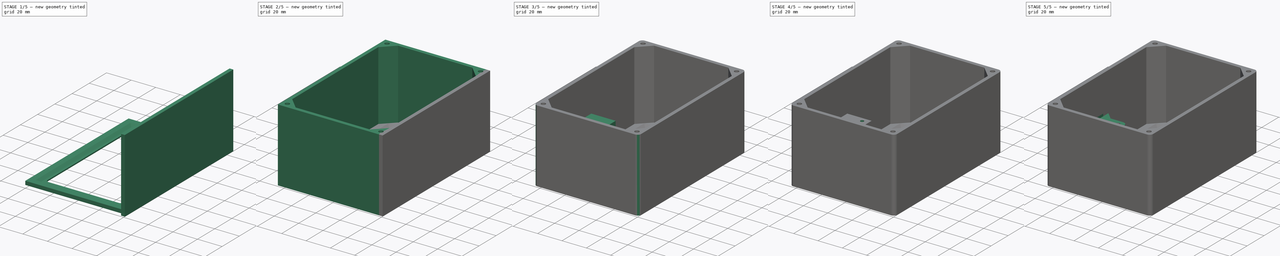
[diagram: build sequence overview — one tinted view per stage of 5, left to right]
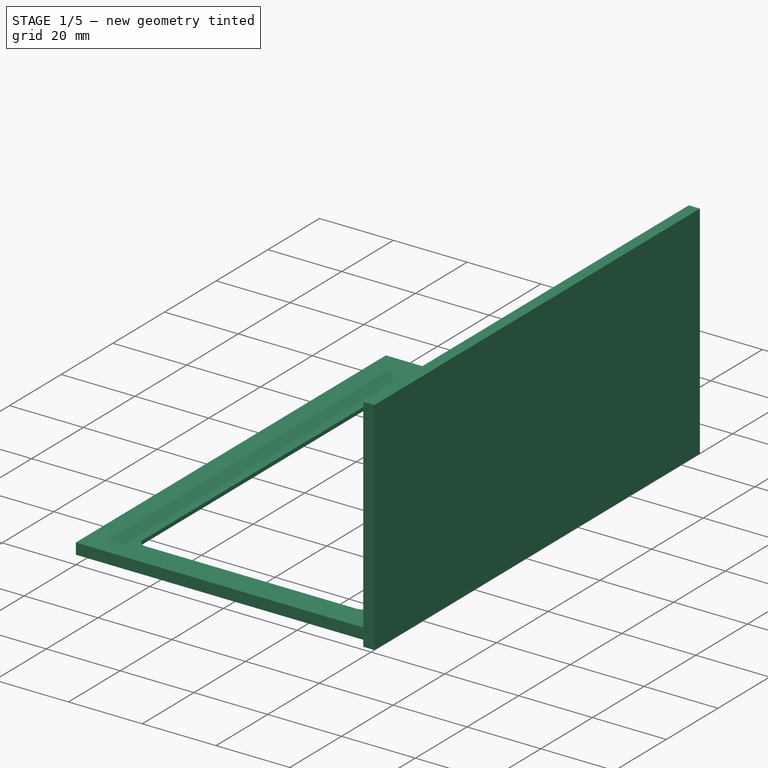
[diagram: stage 1 of 5 — iso view after this stage's code; geometry added in this stage tinted green]
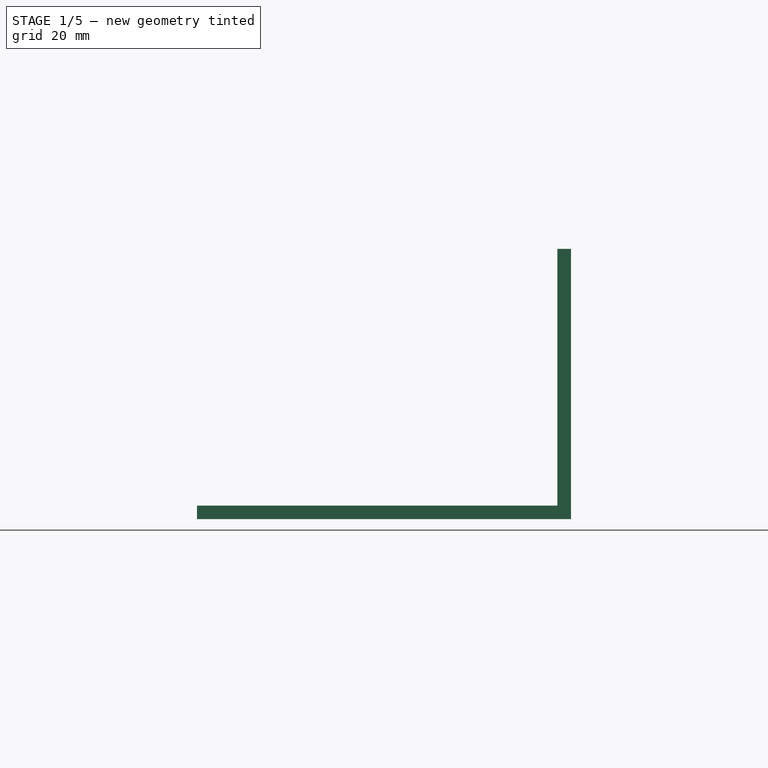
[diagram: stage 1 of 5 — front view after this stage's code; geometry added in this stage tinted green]
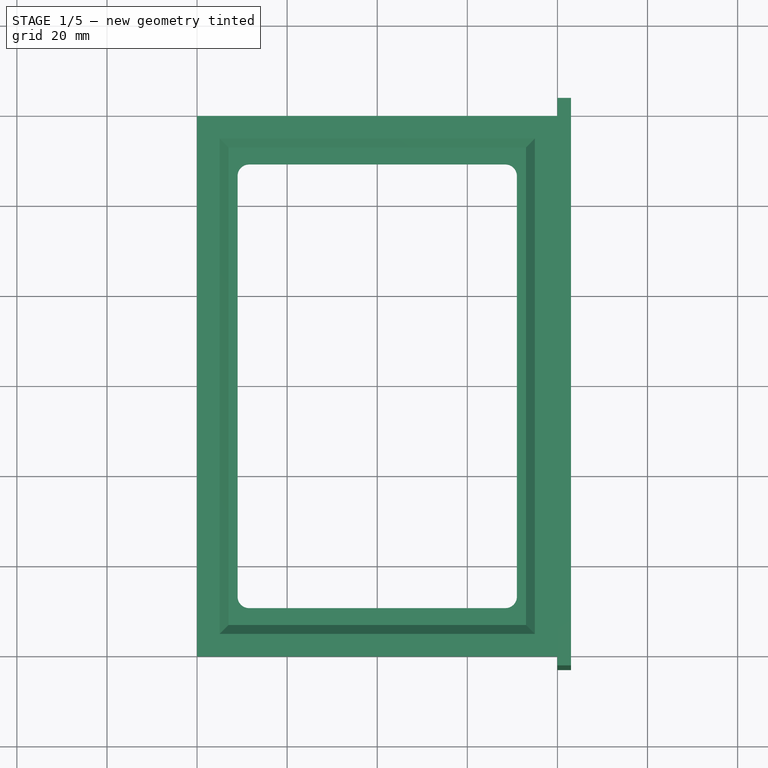
[diagram: stage 1 of 5 — top view after this stage's code; geometry added in this stage tinted green]
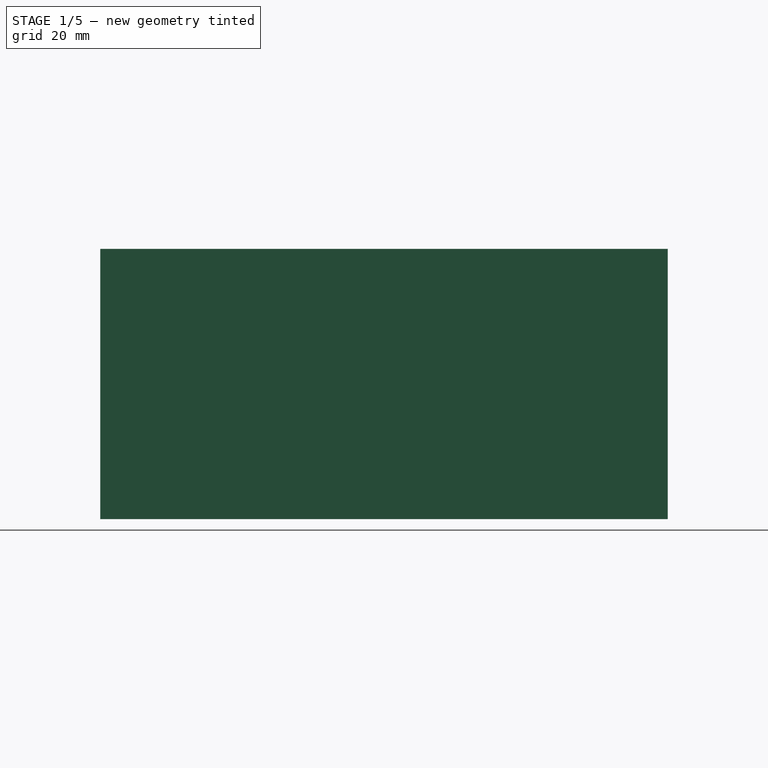
[diagram: stage 1 of 5 — right view after this stage's code; geometry added in this stage tinted green]
FCSTD DOCUMENT  (FreeCAD 0.18.3R)
Label: box_base
License: All rights reserved
LicenseURL: http://en.wikipedia.org/wiki/All_rights_reserved
objects: Sketcher::SketchObject×10, PartDesign::Pocket×9, PartDesign::Chamfer×6, PartDesign::Mirrored×6, PartDesign::Pad×5, PartDesign::Fillet×3, PartDesign::Body×1
note: 54 computed .brp shape members not serialized (recipe doc carries the construction recipe); baked Part::Feature solids carry a one-line shape summary decoded from their .brp

FEATURE [Sketcher::SketchObject] Sketch
  MapMode = 5
  Support = -> [XY_Plane]
  sketch-geometry (4):
    g0: LineSegment StartX=-40 StartY=60 StartZ=0 EndX=40 EndY=60 EndZ=0
    g1: LineSegment StartX=40 StartY=60 StartZ=0 EndX=40 EndY=-60 EndZ=0
    g2: LineSegment StartX=40 StartY=-60 StartZ=0 EndX=-40 EndY=-60 EndZ=0
    g3: LineSegment StartX=-40 StartY=-60 StartZ=0 EndX=-40 EndY=60 EndZ=0
  constraints (10):
    c: Coincident(g0,g1)
    c: Coincident(g1,g2)
    c: Coincident(g2,g3)
    c: Coincident(g3,g0)
    c: Horizontal(g2)
    c: Vertical(g3)
    c: Symmetric(g0,g0,g-2)
    c: Symmetric(g1,g0,g-1)
    c: DistanceY(g1,g1) = 120
    c: DistanceX(g2,g2) = 80
FEATURE [PartDesign::Pad] Pad
  Length = 3
  Length2 = 100
  Profile = -> Sketch
  Type = 0
FEATURE [Sketcher::SketchObject] Sketch001
  ExternalGeometry = -> [Pad]
  MapMode = 5
  Placement = pos=(0,0,3) rot=(0,0,1;0rad)
  Support = -> [Pad]
  sketch-geometry (4):
    g0: LineSegment StartX=-35 StartY=55 StartZ=0 EndX=35 EndY=55 EndZ=0
    g1: LineSegment StartX=35 StartY=55 StartZ=0 EndX=35 EndY=-55 EndZ=0
    g2: LineSegment StartX=35 StartY=-55 StartZ=0 EndX=-35 EndY=-55 EndZ=0
    g3: LineSegment StartX=-35 StartY=-55 StartZ=0 EndX=-35 EndY=55 EndZ=0
  constraints (10):
    c: Coincident(g0,g1)
    c: Coincident(g1,g2)
    c: Coincident(g2,g3)
    c: Coincident(g3,g0)
    c: Horizontal(g2)
    c: Vertical(g3)
    c: Symmetric(g0,g0,g-2)
    c: Symmetric(g1,g0,g-1)
    c: DistanceY(g0,g-4) = 5
    c: DistanceX(g1,g-4) = 5
FEATURE [PartDesign::Pocket] Pocket
  BaseFeature = -> Pad
  Length = 2
  Length2 = 100
  Profile = -> Sketch001
  Type = 0
FEATURE [Sketcher::SketchObject] Sketch002
  MapMode = 5
  Placement = pos=(0,0,1) rot=(0,0,1;0rad)
  Support = -> [Pocket]
  sketch-geometry (4):
    g0: LineSegment StartX=-31 StartY=49.25 StartZ=0 EndX=31 EndY=49.25 EndZ=0
    g1: LineSegment StartX=31 StartY=49.25 StartZ=0 EndX=31 EndY=-49.25 EndZ=0
    g2: LineSegment StartX=31 StartY=-49.25 StartZ=0 EndX=-31 EndY=-49.25 EndZ=0
    g3: LineSegment StartX=-31 StartY=-49.25 StartZ=0 EndX=-31 EndY=49.25 EndZ=0
  constraints (10):
    c: Coincident(g0,g1)
    c: Coincident(g1,g2)
    c: Coincident(g2,g3)
    c: Coincident(g3,g0)
    c: Horizontal(g2)
    c: Vertical(g3)
    c: Symmetric(g0,g1,g-1)
    c: Symmetric(g0,g0,g-2)
    c: DistanceY(g1,g1) = 98.5
    c: DistanceX(g0,g0) = 62
FEATURE [PartDesign::Pocket] Pocket001
  BaseFeature = -> Pocket
  Length = 5
  Length2 = 100
  Profile = -> Sketch002
  Type = 0
FEATURE [PartDesign::Fillet] Fillet
  Base = -> Pocket001 [Edge27,Edge23,Edge22,Edge25]
  BaseFeature = -> Pocket001
  Radius = 2.54
FEATURE [PartDesign::Chamfer] Chamfer
  Base = -> Fillet [Edge37,Edge39,Edge40,Edge38]
  BaseFeature = -> Fillet
  Size = 1.99
FEATURE [Sketcher::SketchObject] Sketch003
  ExternalGeometry = -> [Chamfer]
  MapMode = 5
  Placement = pos=(40,0,0) rot=(0.57735,0.57735,0.57735;2.0944rad)
  Support = -> [Chamfer]
  sketch-geometry (6):
    g0: LineSegment StartX=-63 StartY=60 StartZ=0 EndX=63 EndY=60 EndZ=0
    g1: LineSegment StartX=63 StartY=60 StartZ=0 EndX=63 EndY=0 EndZ=0
    g2: LineSegment StartX=63 StartY=0 StartZ=0 EndX=-63 EndY=0 EndZ=0
    g3: LineSegment StartX=-63 StartY=0 StartZ=0 EndX=-63 EndY=60 EndZ=0
    g4: LineSegment [constr] StartX=60 StartY=0 StartZ=0 EndX=63 EndY=0 EndZ=0
    g5: LineSegment [constr] StartX=-60 StartY=0 StartZ=0 EndX=-63 EndY=0 EndZ=0
  constraints (16):
    c: Coincident(g0,g1)
    c: Coincident(g1,g2)
    c: Coincident(g2,g3)
    c: Coincident(g3,g0)
    c: Horizontal(g0)
    c: Horizontal(g2)
    c: Vertical(g1)
    c: Vertical(g3)
    c: Coincident(g4,g-3)
    c: Horizontal(g4)
    c: DistanceX(g4,g4) = 3
    c: Coincident(g5,g-4)
    c: DistanceX(g5,g5) = 3
    c: Coincident(g5,g2)
    c: Coincident(g4,g1)
    c: DistanceY(g1,g1) = 60
FEATURE [PartDesign::Pad] Pad001
  BaseFeature = -> Chamfer
  Length = 3
  Length2 = 100
  Profile = -> Sketch003
  Type = 0
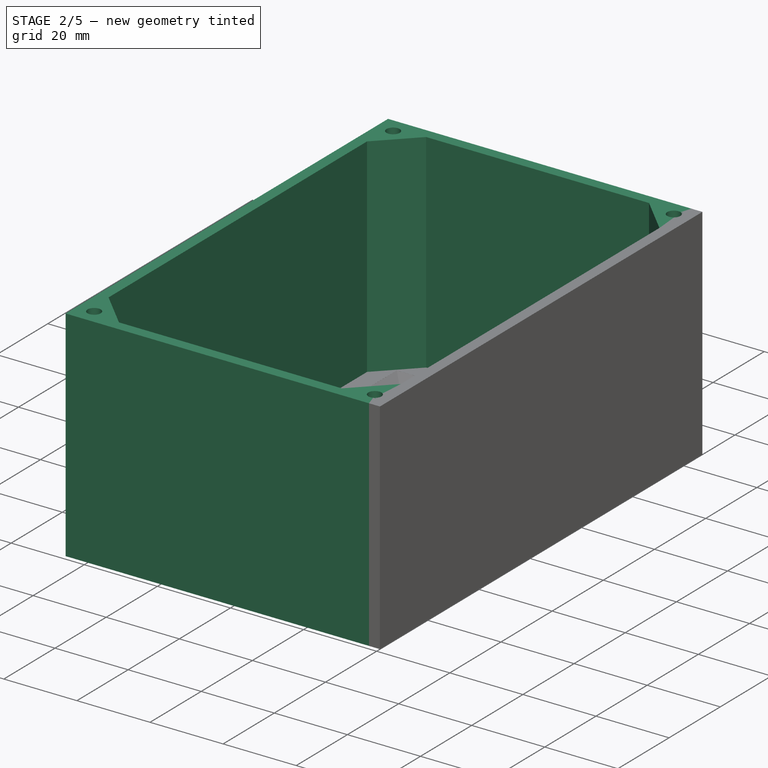
[diagram: stage 2 of 5 — iso view after this stage's code; geometry added in this stage tinted green]
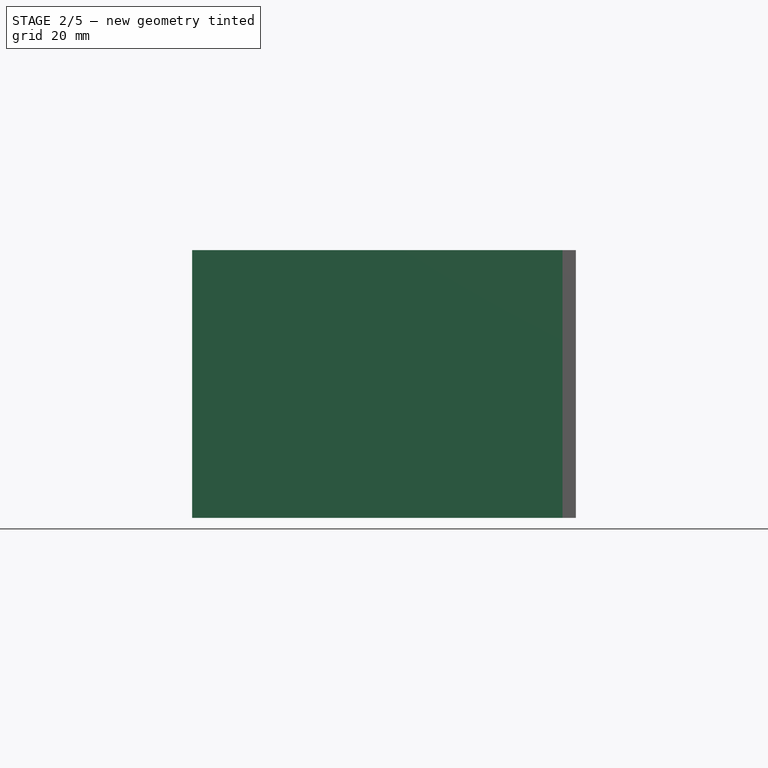
[diagram: stage 2 of 5 — front view after this stage's code; geometry added in this stage tinted green]
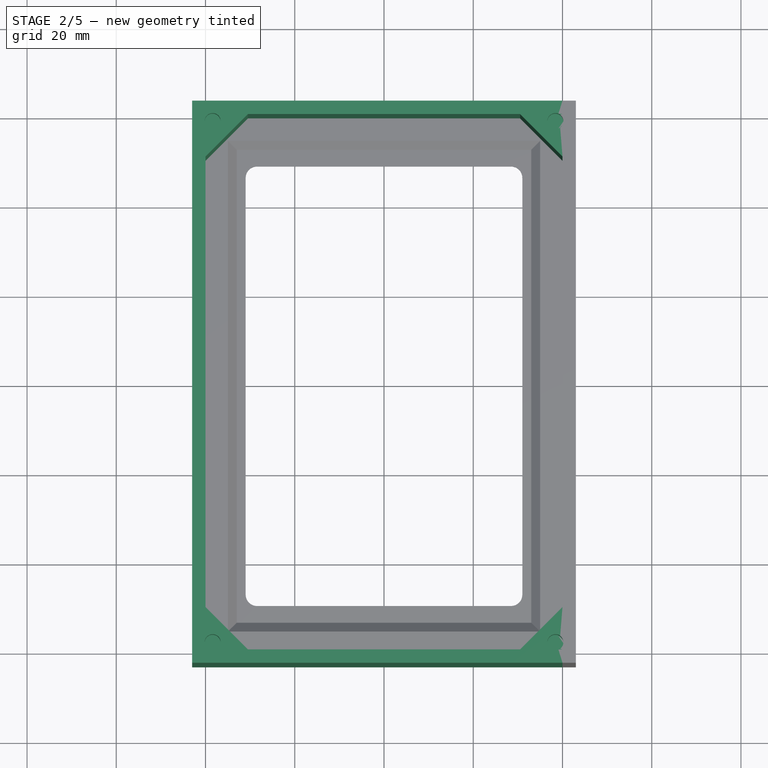
[diagram: stage 2 of 5 — top view after this stage's code; geometry added in this stage tinted green]
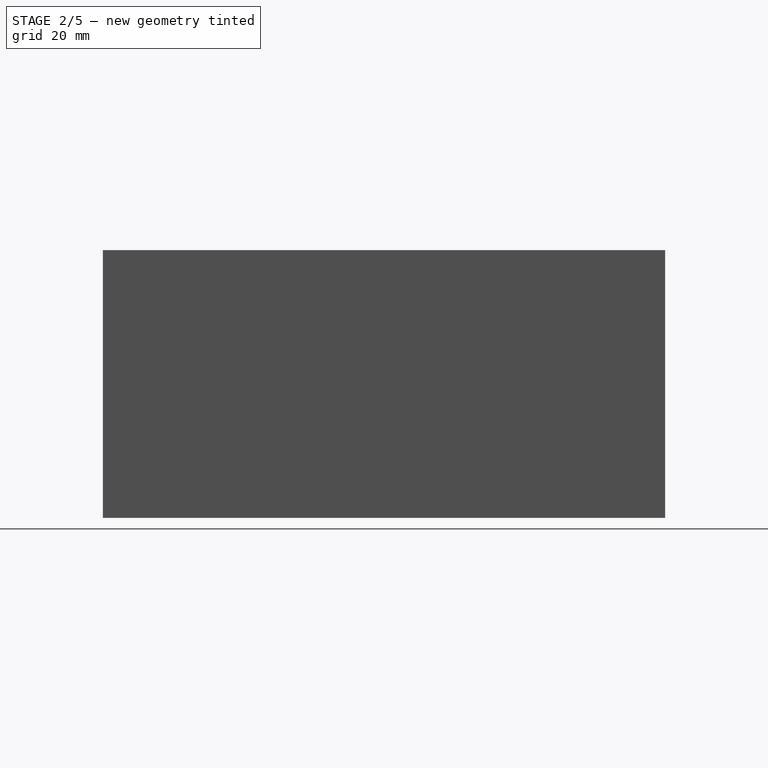
[diagram: stage 2 of 5 — right view after this stage's code; geometry added in this stage tinted green]
FEATURE [PartDesign::Mirrored] Mirrored
  BaseFeature = -> Pad001
  MirrorPlane = -> YZ_Plane
  Originals = -> [Pad001]
FEATURE [Sketcher::SketchObject] Sketch004
  ExternalGeometry = -> [Mirrored]
  MapMode = 5
  Placement = pos=(0,60,0) rot=(0,0.707107,0.707107;3.14159rad)
  Support = -> [Mirrored]
  sketch-geometry (4):
    g0: LineSegment StartX=-40 StartY=60 StartZ=0 EndX=40 EndY=60 EndZ=0
    g1: LineSegment StartX=40 StartY=60 StartZ=0 EndX=40 EndY=0 EndZ=0
    g2: LineSegment StartX=40 StartY=0 StartZ=0 EndX=-40 EndY=0 EndZ=0
    g3: LineSegment StartX=-40 StartY=0 StartZ=0 EndX=-40 EndY=60 EndZ=0
  constraints (9):
    c: Coincident(g0,g1)
    c: Coincident(g1,g2)
    c: Coincident(g2,g3)
    c: Coincident(g3,g0)
    c: Horizontal(g2)
    c: Vertical(g1)
    c: Coincident(g0,g-4)
    c: Coincident(g-3,g0)
    c: Coincident(g2,g-3)
FEATURE [PartDesign::Pad] Pad002
  BaseFeature = -> Mirrored
  Length = 3
  Length2 = 100
  Profile = -> Sketch004
  Type = 0
FEATURE [PartDesign::Mirrored] Mirrored001
  BaseFeature = -> Pad002
  MirrorPlane = -> XZ_Plane
  Originals = -> [Pad002]
FEATURE [PartDesign::Chamfer] Chamfer001
  Base = -> Mirrored001 [Edge18,Edge17,Edge42,Edge34]
  BaseFeature = -> Mirrored001
  Size = 9.5
FEATURE [Sketcher::SketchObject] Sketch005
  ExternalGeometry = -> [Chamfer001]
  MapMode = 5
  Placement = pos=(0,1.32e-14,60) rot=(0,0,1;0rad)
  Support = -> [Chamfer001]
  sketch-geometry (4):
    g0: LineSegment [constr] StartX=-43 StartY=-63 StartZ=0 EndX=-38.4038 EndY=-58.4038 EndZ=0
    g1: Circle CenterX=-38.4038 CenterY=-58.4038 CenterZ=0 NormalX=0 NormalY=0 NormalZ=1 AngleXU=0 Radius=1.8
    g2: LineSegment [constr] StartX=43 StartY=-63 StartZ=0 EndX=38.4038 EndY=-58.4038 EndZ=0
    g3: Circle CenterX=38.4038 CenterY=-58.4038 CenterZ=0 NormalX=0 NormalY=0 NormalZ=1 AngleXU=0 Radius=1.8
  constraints (10):
    c: Coincident(g0,g-3)
    c: Angle(g-3,g0) = 0.785398
    c: Distance(g0) = 6.5
    c: Coincident(g1,g0)
    c: Diameter(g1) = 3.6
    c: Coincident(g2,g-6)
    c: Angle(g2,g-6) = 0.785398
    c: Equal(g2,g0)
    c: Coincident(g3,g2)
    c: Diameter(g3) = 3.6
FEATURE [PartDesign::Pocket] Pocket002
  BaseFeature = -> Chamfer001
  Length = 8
  Length2 = 100
  Profile = -> Sketch005
  Type = 0
FEATURE [PartDesign::Mirrored] Mirrored002
  BaseFeature = -> Pocket002
  MirrorPlane = -> XZ_Plane
  Originals = -> [Pocket002]
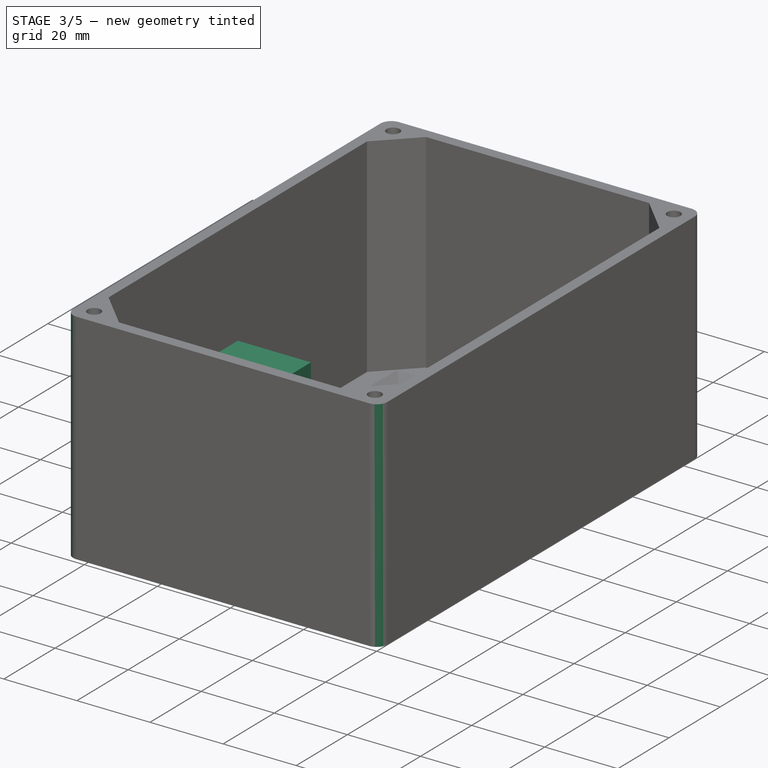
[diagram: stage 3 of 5 — iso view after this stage's code; geometry added in this stage tinted green]
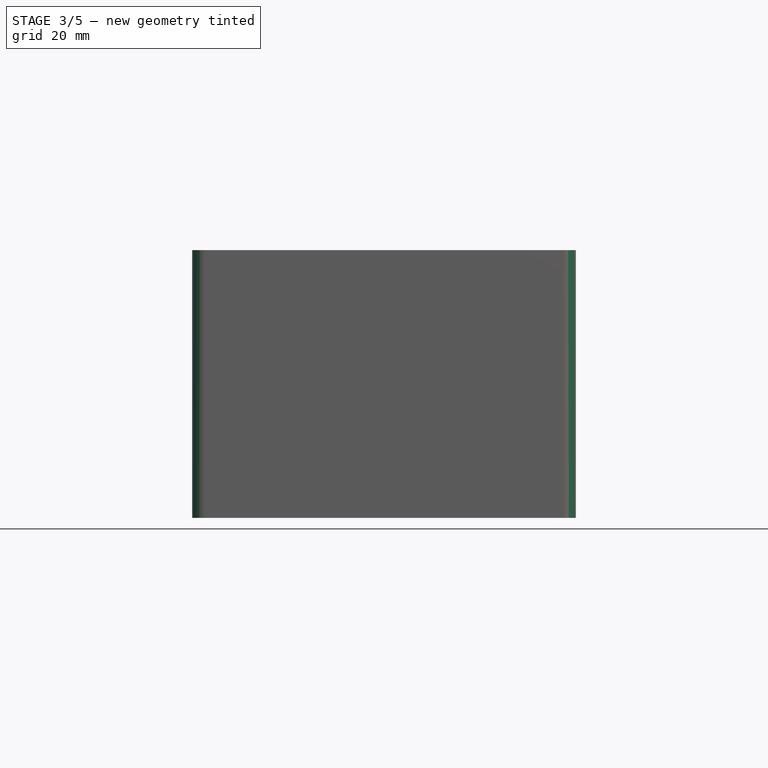
[diagram: stage 3 of 5 — front view after this stage's code; geometry added in this stage tinted green]
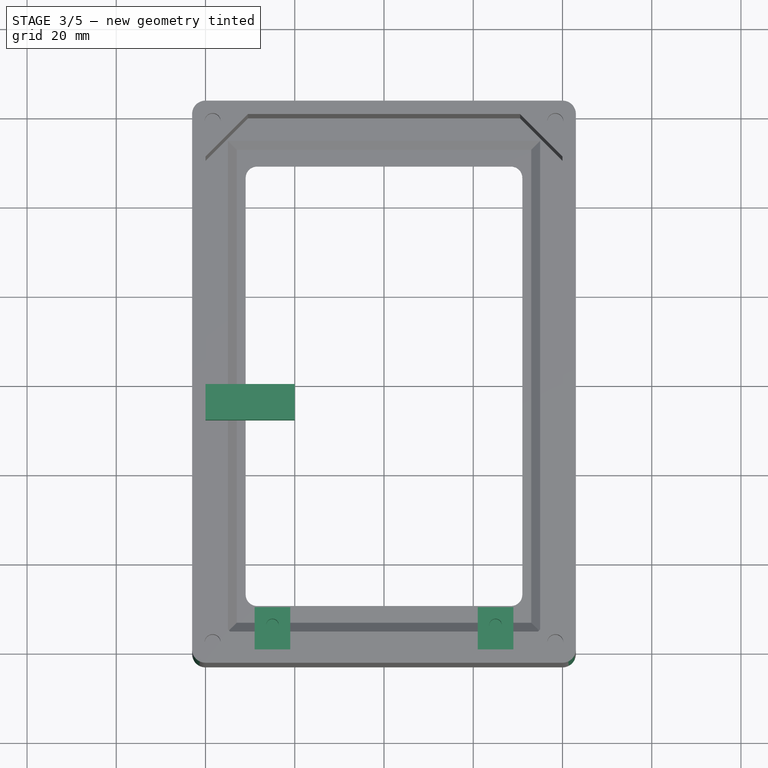
[diagram: stage 3 of 5 — top view after this stage's code; geometry added in this stage tinted green]
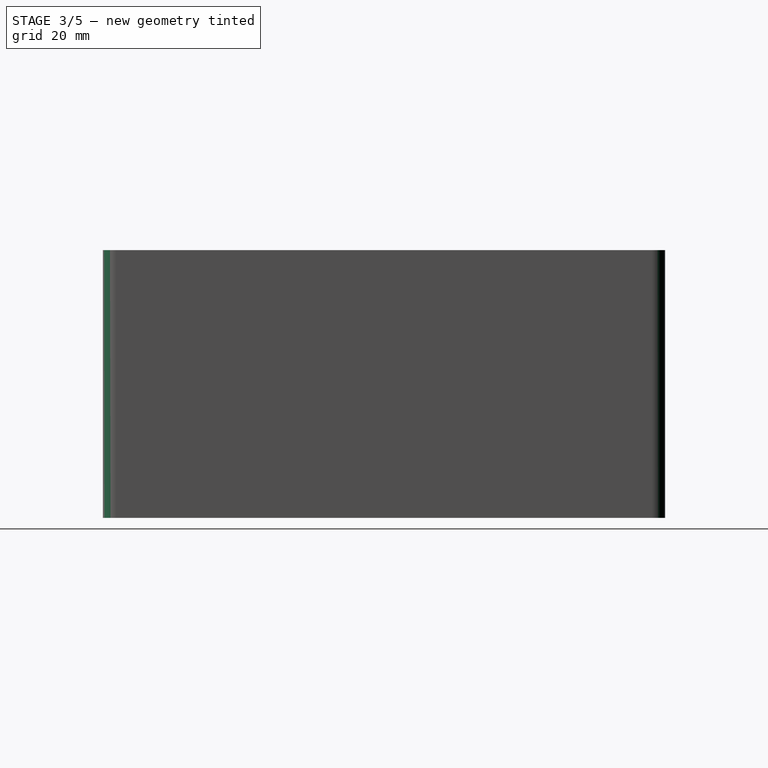
[diagram: stage 3 of 5 — right view after this stage's code; geometry added in this stage tinted green]
FEATURE [PartDesign::Fillet] Fillet001
  Base = -> Mirrored002 [Edge30,Edge32,Edge96,Edge94]
  BaseFeature = -> Mirrored002
  Radius = 2.99
FEATURE [Sketcher::SketchObject] Sketch006
  ExternalGeometry = -> [Fillet001]
  MapMode = 5
  Placement = pos=(0,-60,-1.44e-14) rot=(0,0.707107,0.707107;3.14159rad)
  Support = -> [Fillet001]
  sketch-geometry (8):
    g0: LineSegment StartX=-29 StartY=30 StartZ=0 EndX=-21 EndY=30 EndZ=0
    g1: LineSegment StartX=-21 StartY=30 StartZ=0 EndX=-21 EndY=20 EndZ=0
    g2: LineSegment StartX=-21 StartY=20 StartZ=0 EndX=-29 EndY=20 EndZ=0
    g3: LineSegment StartX=-29 StartY=20 StartZ=0 EndX=-29 EndY=30 EndZ=0
    g4: LineSegment StartX=21 StartY=30 StartZ=0 EndX=29 EndY=30 EndZ=0
    g5: LineSegment StartX=29 StartY=30 StartZ=0 EndX=29 EndY=20 EndZ=0
    g6: LineSegment StartX=29 StartY=20 StartZ=0 EndX=21 EndY=20 EndZ=0
    g7: LineSegment StartX=21 StartY=20 StartZ=0 EndX=21 EndY=30 EndZ=0
  constraints (23):
    c: Coincident(g0,g1)
    c: Coincident(g1,g2)
    c: Coincident(g2,g3)
    c: Coincident(g3,g0)
    c: Horizontal(g0)
    c: Horizontal(g2)
    c: Vertical(g1)
    c: Vertical(g3)
    c: Coincident(g4,g5)
    c: Coincident(g5,g6)
    c: Coincident(g6,g7)
    c: Coincident(g7,g4)
    c: Horizontal(g4)
    c: Horizontal(g6)
    c: Vertical(g5)
    c: Vertical(g7)
    c: Symmetric(g0,g4,g-2)
    c: Equal(g4,g0)
    c: Equal(g1,g7)
    c: DistanceX(g0,g0) = 8
    c: DistanceX(g0,g4) = 42
    c: DistanceY(g1,g1) = 10
    c: Distance(g1,g-3) = 17
FEATURE [PartDesign::Pad] Pad003
  BaseFeature = -> Fillet001
  Length = 10
  Length2 = 100
  Profile = -> Sketch006
  Type = 0
FEATURE [Sketcher::SketchObject] Sketch007
  ExternalGeometry = -> [Pad003]
  MapMode = 5
  Placement = pos=(-40,8.8e-15,-8.8e-15) rot=(0.57735,0.57735,0.57735;2.0944rad)
  Support = -> [Pad003]
  sketch-geometry (4):
    g0: LineSegment StartX=-8 StartY=30 StartZ=0 EndX=-5.3e-15 EndY=30 EndZ=0
    g1: LineSegment StartX=-5.2e-15 StartY=30 StartZ=0 EndX=-5.2e-15 EndY=20 EndZ=0
    g2: LineSegment StartX=-5.2e-15 StartY=20 StartZ=0 EndX=-8 EndY=20 EndZ=0
    g3: LineSegment StartX=-8 StartY=20 StartZ=0 EndX=-8 EndY=30 EndZ=0
  constraints (12):
    c: Coincident(g0,g1)
    c: Coincident(g1,g2)
    c: Coincident(g2,g3)
    c: Coincident(g3,g0)
    c: Horizontal(g0)
    c: Horizontal(g2)
    c: Vertical(g1)
    c: Vertical(g3)
    c: DistanceX(g0,g0) = 8
    c: DistanceY(g1,g1) = 10
    c: Distance(g1,g-3) = 17
    c: Distance(g2,g-4) = 42.5
FEATURE [PartDesign::Pad] Pad004
  BaseFeature = -> Pad003
  Length = 20
  Length2 = 100
  Profile = -> Sketch007
  Type = 0
FEATURE [Sketcher::SketchObject] Sketch008
  ExternalGeometry = -> [Pad004]
  MapMode = 5
  Placement = pos=(0,-6.6e-15,30) rot=(0,0,1;0rad)
  Support = -> [Pad004]
  sketch-geometry (1):
    g0: Circle CenterX=-25 CenterY=-54 CenterZ=0 NormalX=0 NormalY=0 NormalZ=1 AngleXU=0 Radius=1.4
  constraints (3):
    c: Diameter(g0) = 2.8
    c: DistanceX(g0,g-4) = 4
    c: DistanceY(g-4,g0) = 6
FEATURE [PartDesign::Pocket] Pocket003
  BaseFeature = -> Pad004
  Length = 7
  Length2 = 100
  Profile = -> Sketch008
  Type = 0
FEATURE [PartDesign::Mirrored] Mirrored003
  BaseFeature = -> Pocket003
  MirrorPlane = -> Sketch008 [V_Axis]
  Originals = -> [Pocket003]
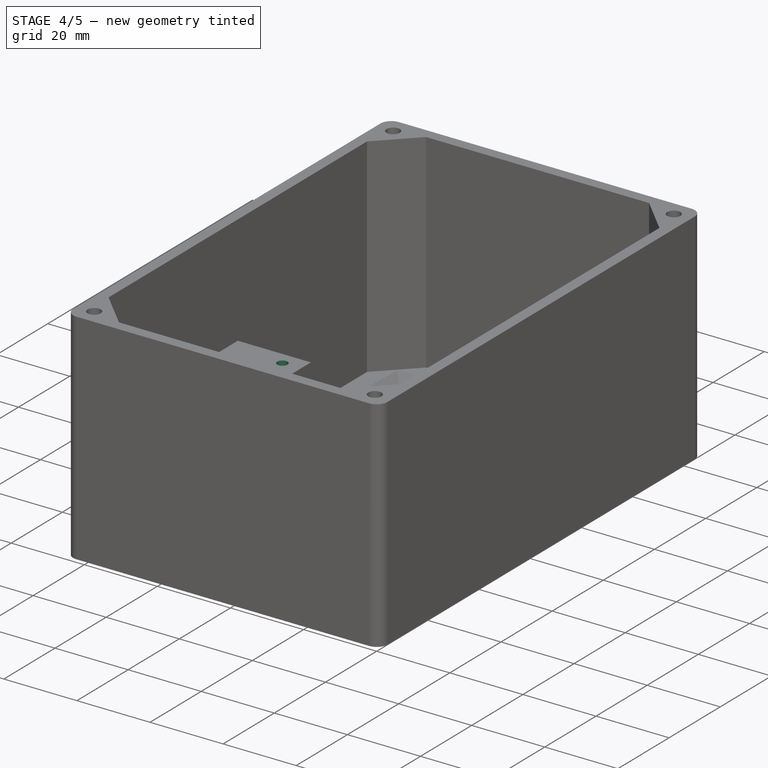
[diagram: stage 4 of 5 — iso view after this stage's code; geometry added in this stage tinted green]
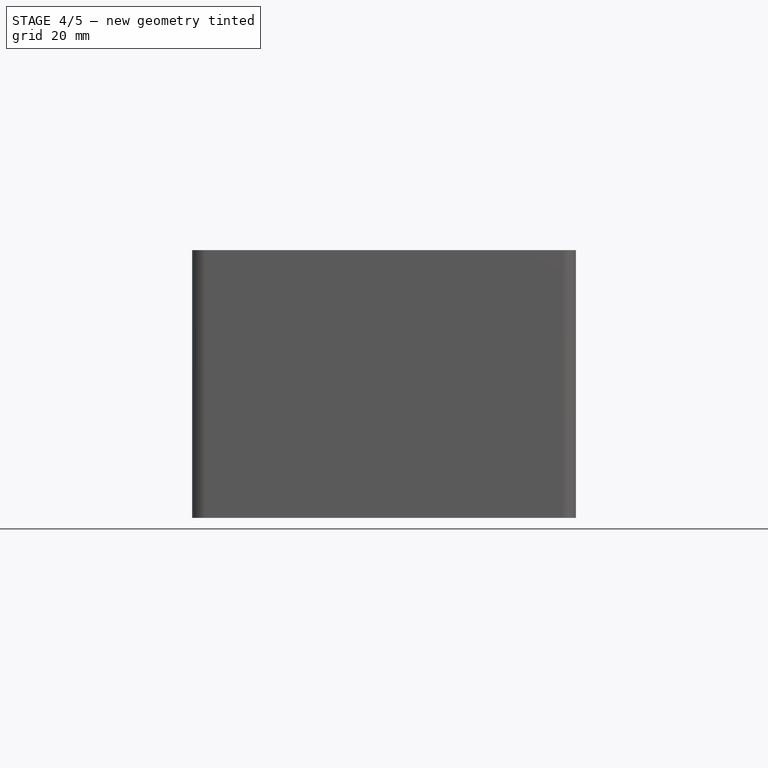
[diagram: stage 4 of 5 — front view after this stage's code; geometry added in this stage tinted green]
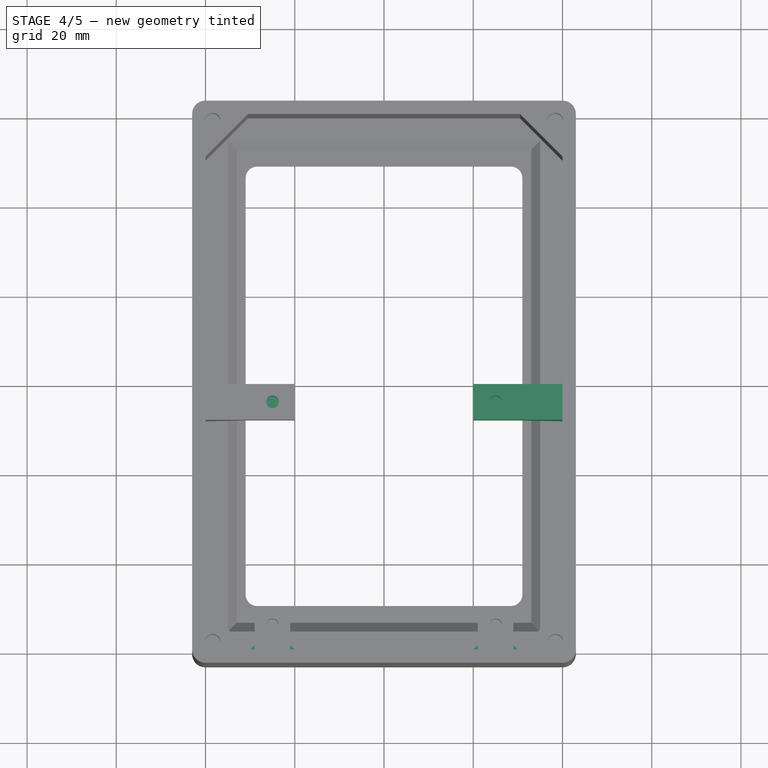
[diagram: stage 4 of 5 — top view after this stage's code; geometry added in this stage tinted green]
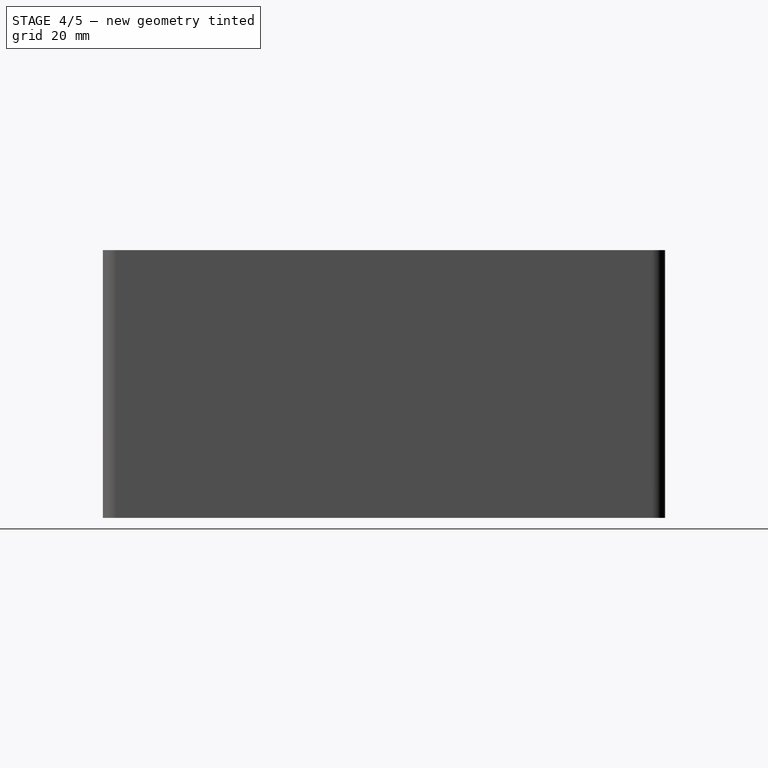
[diagram: stage 4 of 5 — right view after this stage's code; geometry added in this stage tinted green]
FEATURE [Sketcher::SketchObject] Sketch009
  ExternalGeometry = -> [Mirrored003]
  MapMode = 5
  Placement = pos=(-6.6e-15,0,30) rot=(0,0,1;0rad)
  Support = -> [Mirrored003]
  sketch-geometry (1):
    g0: Circle CenterX=-25 CenterY=-4 CenterZ=0 NormalX=0 NormalY=0 NormalZ=1 AngleXU=0 Radius=1.4
  constraints (3):
    c: Diameter(g0) = 2.8
    c: Vertical(g0,g-3)
    c: Distance(g-3,g0) = 50
FEATURE [PartDesign::Pocket] Pocket004
  BaseFeature = -> Mirrored003
  Length = 7
  Length2 = 100
  Profile = -> Sketch009
  Type = 0
FEATURE [PartDesign::Mirrored] Mirrored004
  BaseFeature = -> Pocket004
  MirrorPlane = -> YZ_Plane
  Originals = -> [Pad004]
FEATURE [PartDesign::Mirrored] Mirrored005
  BaseFeature = -> Mirrored004
  MirrorPlane = -> Sketch009 [V_Axis]
  Originals = -> [Pocket004]
FEATURE [PartDesign::Chamfer] Chamfer002
  Base = -> Mirrored005 [Edge91,Edge87]
  BaseFeature = -> Mirrored005
  Size = 9.99
FEATURE [PartDesign::Chamfer] Chamfer003
  Base = -> Chamfer002 [Edge82,Edge77]
  BaseFeature = -> Chamfer002
  Size = 9.99
FEATURE [PartDesign::Chamfer] Chamfer004
  Base = -> Chamfer003 [Edge71,Edge72,Edge74,Edge78,Edge67]
  BaseFeature = -> Chamfer003
  Size = 1.49
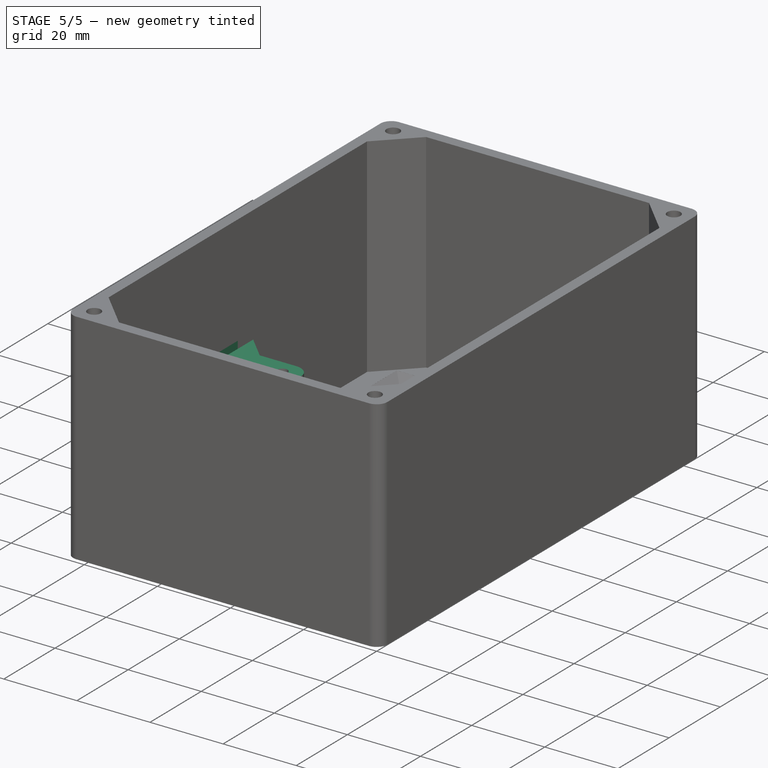
[diagram: stage 5 of 5 — iso view after this stage's code; geometry added in this stage tinted green]
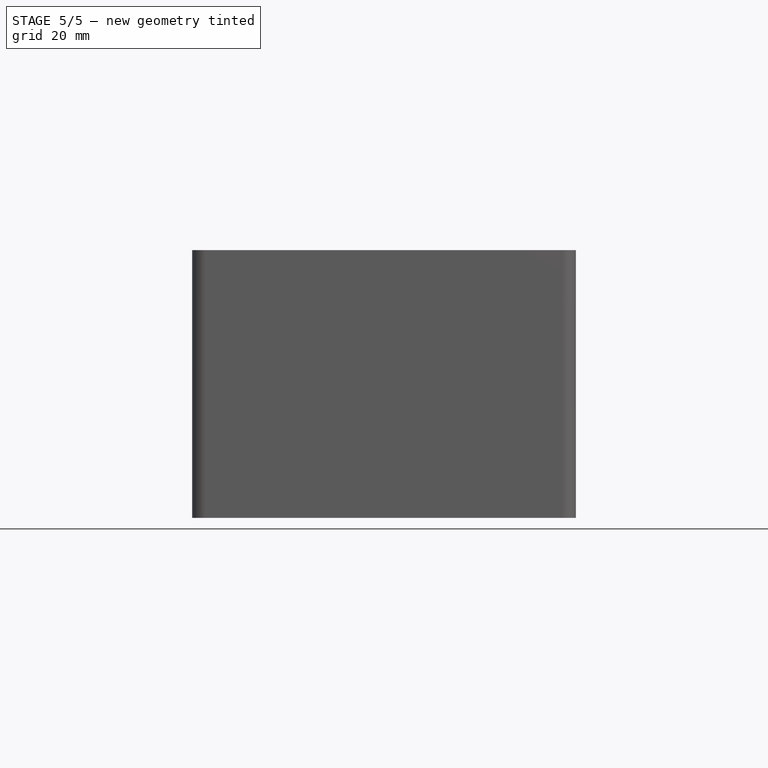
[diagram: stage 5 of 5 — front view after this stage's code; geometry added in this stage tinted green]
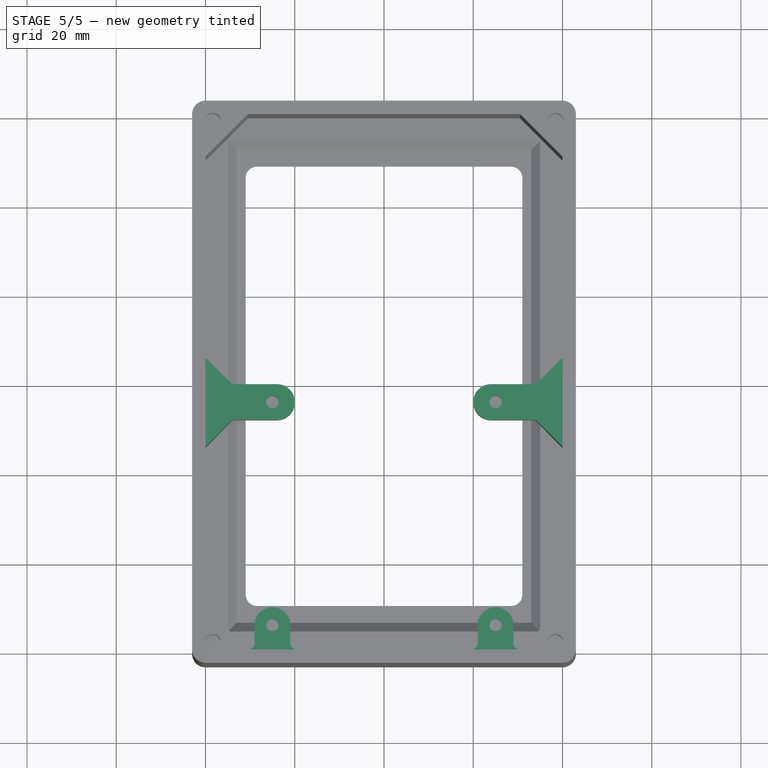
[diagram: stage 5 of 5 — top view after this stage's code; geometry added in this stage tinted green]
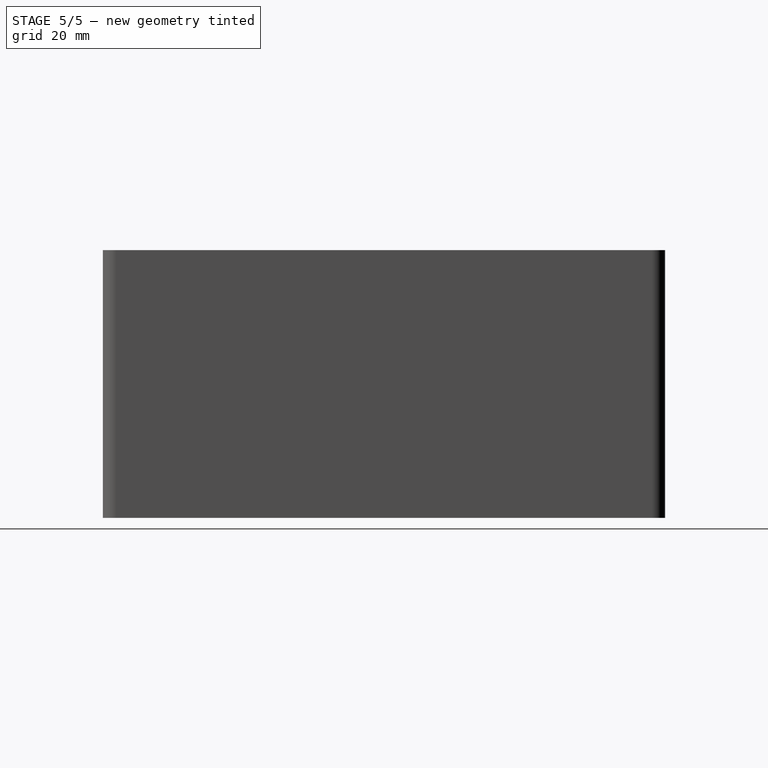
[diagram: stage 5 of 5 — right view after this stage's code; geometry added in this stage tinted green]
FEATURE [PartDesign::Chamfer] Chamfer005
  Base = -> Chamfer004 [Edge98,Edge102,Edge109,Edge105]
  BaseFeature = -> Chamfer004
  Size = 6
FEATURE [PartDesign::Pocket] Pocket005
  BaseFeature = -> Chamfer005
  Length = 2
  Length2 = 100
  Profile = -> Chamfer005 [Face36]
  Type = 0
FEATURE [PartDesign::Pocket] Pocket006
  BaseFeature = -> Pocket005
  Length = 2
  Length2 = 100
  Profile = -> Pocket005 [Face45]
  Type = 0
FEATURE [PartDesign::Pocket] Pocket007
  BaseFeature = -> Pocket006
  Length = 2
  Length2 = 100
  Profile = -> Pocket006 [Face2]
  Type = 0
FEATURE [PartDesign::Pocket] Pocket008
  BaseFeature = -> Pocket007
  Length = 2
  Length2 = 100
  Profile = -> Pocket007 [Face55]
  Type = 0
FEATURE [PartDesign::Fillet] Fillet002
  Base = -> Pocket008 [Edge245,Edge242,Edge69,Edge68,Edge270,Edge271,Edge263,Edge260]
  BaseFeature = -> Pocket008
  Radius = 3.99
FEATURE [PartDesign::Body] Body
  Group = -> [Sketch,Pad,Sketch001,Pocket,Sketch002,Pocket001,Fillet,Chamfer,Sketch003,Pad001,Mirrored,Sketch004,Pad002,Mirrored001,Chamfer001,Sketch005,Pocket002,Mirrored002,Fillet001,Sketch006,Pad003,Sketch007,Pad004,Sketch008,Pocket003,Mirrored003,Sketch009,Pocket004,Mirrored004,Mirrored005,Chamfer002,Chamfer003,Chamfer004,Chamfer005,Pocket005,Pocket006,Pocket007,Pocket008,Fillet002]
  Origin = -> Origin
  Tip = -> Fillet002
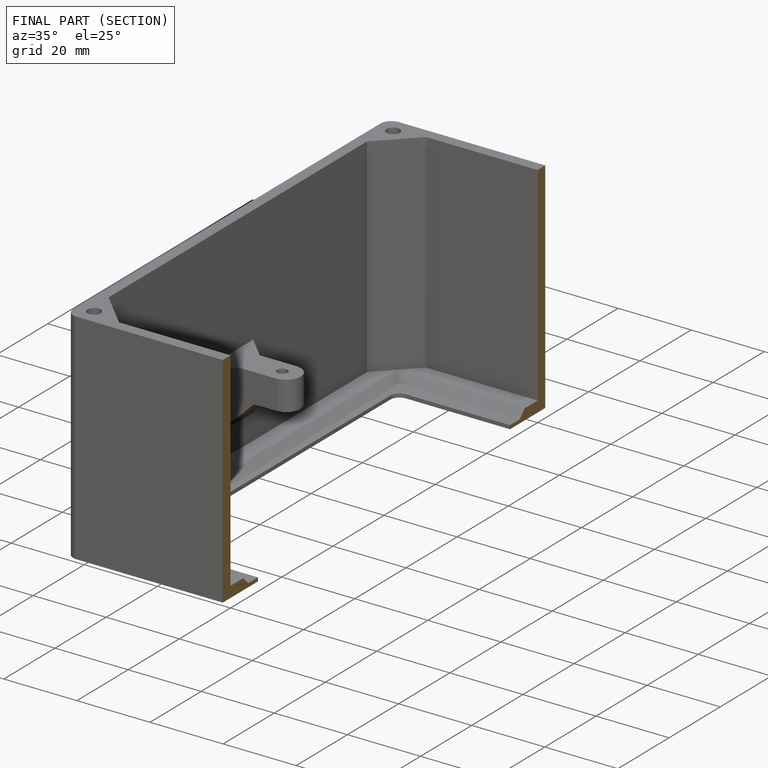
[diagram: finished part — half-section view (interior)]
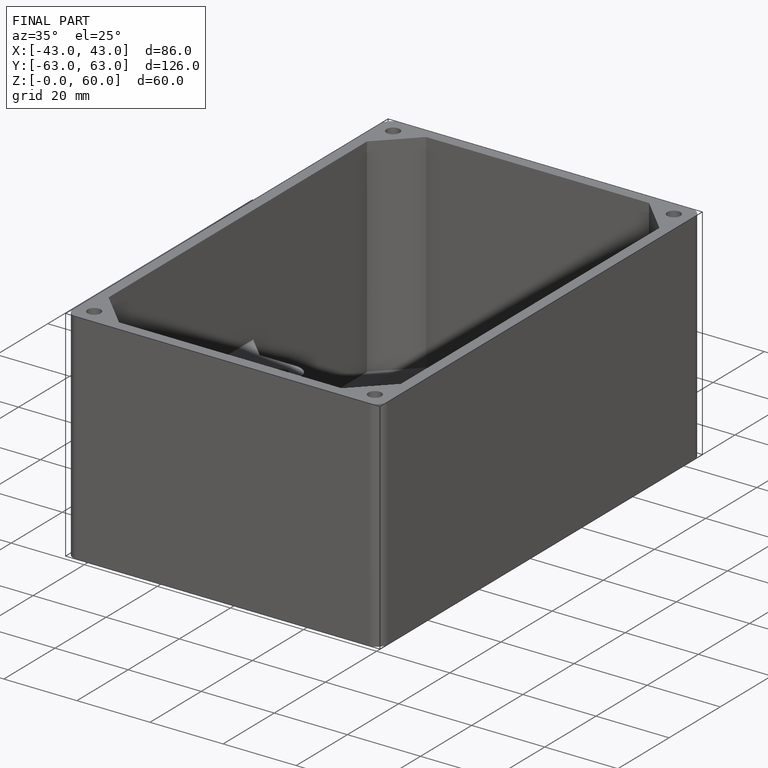
[diagram: finished part — iso view with bounding-box wireframe]
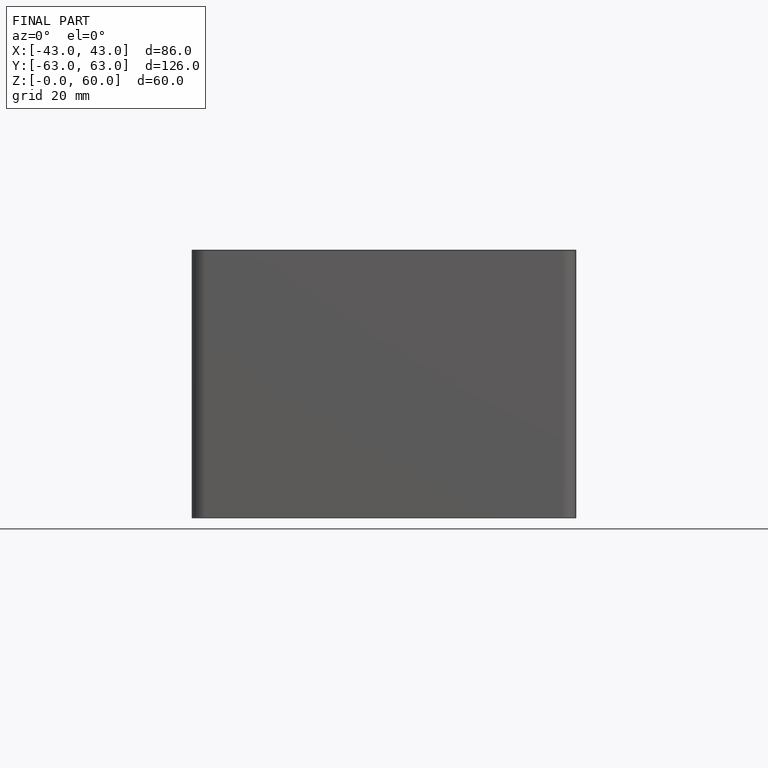
[diagram: finished part — front view with bounding-box wireframe]
